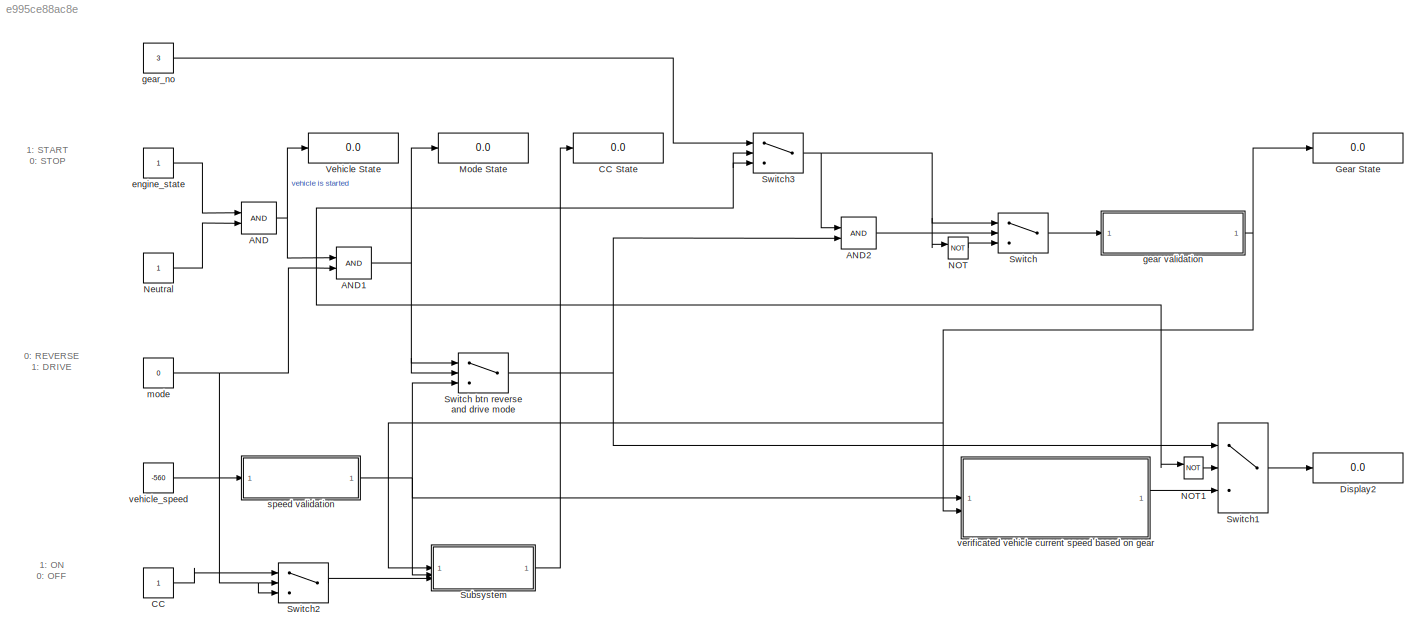
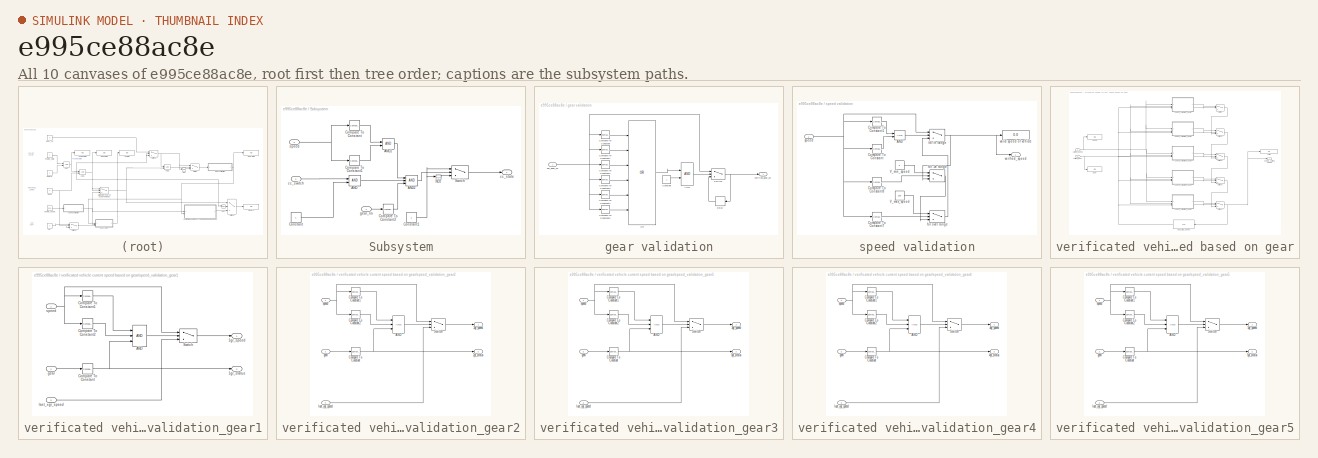
[diagram: thumbnail index - all 10 canvases of the model, root first then tree order]
MODEL slx_e995ce88ac8e
KIND model
CONFIG AbsTol = auto
CONFIG EnableMultiTasking = off
CONFIG FixedStep = auto
CONFIG MaxStep = auto
CONFIG MinStep = auto
CONFIG RelTol = 1e-3
CONFIG SampleTimeConstraint = Unconstrained
CONFIG SolverName = VariableStepAuto
CONFIG StartTime = 0.0
CONFIG StopTime = inf
BLOCK [Logic] AND
  AllPortsSameDT = off
  IconShape = distinctive
  OutDataTypeStr = boolean
BLOCK [Logic] AND1
  AllPortsSameDT = off
  IconShape = distinctive
  OutDataTypeStr = boolean
BLOCK [Logic] AND2
  AllPortsSameDT = off
  IconShape = distinctive
  OutDataTypeStr = boolean
BLOCK [Constant] CC
BLOCK [Display] CC State
  Decimation = 1
BLOCK [Display] Display2
  Decimation = 1
BLOCK [Display] Gear State
  Decimation = 1
BLOCK [Display] Mode State
  Decimation = 1
BLOCK [Logic] NOT
  AllPortsSameDT = off
  IconShape = distinctive
  Operator = NOT
  OutDataTypeStr = boolean
BLOCK [Logic] NOT1
  AllPortsSameDT = off
  IconShape = distinctive
  Operator = NOT
  OutDataTypeStr = boolean
BLOCK [Constant] Neutral
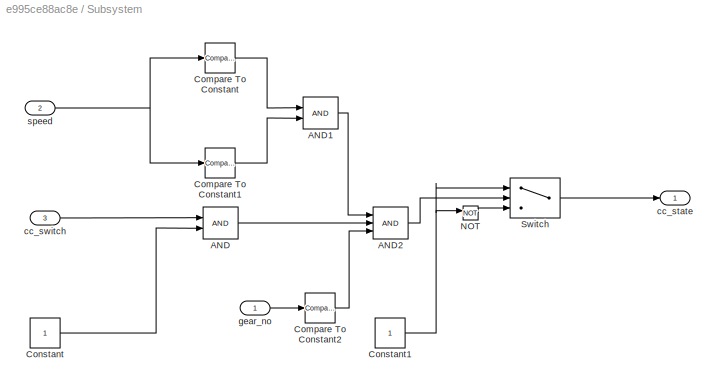
BLOCK [SubSystem] Subsystem
BLOCK [Logic] Subsystem/AND
  AllPortsSameDT = off
  IconShape = distinctive
  OutDataTypeStr = boolean
BLOCK [Logic] Subsystem/AND1
  AllPortsSameDT = off
  IconShape = distinctive
  OutDataTypeStr = boolean
BLOCK [Logic] Subsystem/AND2
  AllPortsSameDT = off
  IconShape = distinctive
  Inputs = 3
  OutDataTypeStr = boolean
BLOCK [Reference] Subsystem/Compare To Constant  REF=simulink/Logic and Bit
Operations/Compare
To Constant
  SourceBlock = simulink/Logic and Bit\nOperations/Compare\nTo Constant
  SourceType = Compare To Constant
BLOCK [Reference] Subsystem/Compare To Constant1  REF=simulink/Logic and Bit
Operations/Compare
To Constant
  SourceBlock = simulink/Logic and Bit\nOperations/Compare\nTo Constant
  SourceType = Compare To Constant
BLOCK [Reference] Subsystem/Compare To Constant2  REF=simulink/Logic and Bit
Operations/Compare
To Constant
  SourceBlock = simulink/Logic and Bit\nOperations/Compare\nTo Constant
  SourceType = Compare To Constant
BLOCK [Constant] Subsystem/Constant
BLOCK [Constant] Subsystem/Constant1
BLOCK [Logic] Subsystem/NOT
  AllPortsSameDT = off
  IconShape = distinctive
  Operator = NOT
  OutDataTypeStr = boolean
BLOCK [Switch] Subsystem/Switch
  Criteria = u2 > Threshold
  InputSameDT = off
  SaturateOnIntegerOverflow = off
BLOCK [Outport] Subsystem/cc_state
BLOCK [Inport] Subsystem/cc_switch
  Port = 3
BLOCK [Inport] Subsystem/gear_no
BLOCK [Inport] Subsystem/speed
  Port = 2
BLOCK [Switch] Switch
  Criteria = u2 > Threshold
  InputSameDT = off
  SaturateOnIntegerOverflow = off
BLOCK [Switch] Switch btn reverse and drive mode
  Criteria = u2 > Threshold
  InputSameDT = off
  SaturateOnIntegerOverflow = off
BLOCK [Switch] Switch1
  Criteria = u2 > Threshold
  InputSameDT = off
  SaturateOnIntegerOverflow = off
BLOCK [Switch] Switch2
  Criteria = u2 > Threshold
  InputSameDT = off
  SaturateOnIntegerOverflow = off
BLOCK [Switch] Switch3
  Criteria = u2 > Threshold
  InputSameDT = off
  SaturateOnIntegerOverflow = off
BLOCK [Display] Vehicle State
  Decimation = 1
BLOCK [Constant] engine_state
BLOCK [SubSystem] gear validation
BLOCK [Logic] gear validation/AND
  AllPortsSameDT = off
  IconShape = distinctive
  OutDataTypeStr = boolean
BLOCK [Reference] gear validation/Compare To Constant  REF=simulink/Logic and Bit
Operations/Compare
To Constant
  SourceBlock = simulink/Logic and Bit\nOperations/Compare\nTo Constant
  SourceType = Compare To Constant
BLOCK [Reference] gear validation/Compare To Constant1  REF=simulink/Logic and Bit
Operations/Compare
To Constant
  SourceBlock = simulink/Logic and Bit\nOperations/Compare\nTo Constant
  SourceType = Compare To Constant
BLOCK [Reference] gear validation/Compare To Constant2  REF=simulink/Logic and Bit
Operations/Compare
To Constant
  SourceBlock = simulink/Logic and Bit\nOperations/Compare\nTo Constant
  SourceType = Compare To Constant
BLOCK [Reference] gear validation/Compare To Constant3  REF=simulink/Logic and Bit
Operations/Compare
To Constant
  SourceBlock = simulink/Logic and Bit\nOperations/Compare\nTo Constant
  SourceType = Compare To Constant
BLOCK [Reference] gear validation/Compare To Constant4  REF=simulink/Logic and Bit
Operations/Compare
To Constant
  SourceBlock = simulink/Logic and Bit\nOperations/Compare\nTo Constant
  SourceType = Compare To Constant
BLOCK [Reference] gear validation/Compare To Constant5  REF=simulink/Logic and Bit
Operations/Compare
To Constant
  SourceBlock = simulink/Logic and Bit\nOperations/Compare\nTo Constant
  SourceType = Compare To Constant
BLOCK [Constant] gear validation/Constant
BLOCK [Delay] gear validation/Delay
  DelayLength = 1
  InitialCondition = 0
  InputPortMap = u0
BLOCK [Logic] gear validation/OR
  AllPortsSameDT = off
  IconShape = distinctive
  Inputs = 6
  Operator = OR
  OutDataTypeStr = boolean
BLOCK [Switch] gear validation/Switch
  Criteria = u2 > Threshold
  InputSameDT = off
  SaturateOnIntegerOverflow = off
BLOCK [Inport] gear validation/set_gear_no
BLOCK [Outport] gear validation/verified_gear_no
BLOCK [Constant] gear_no
  Value = 3
BLOCK [Constant] mode
  Value = 0
BLOCK [SubSystem] speed validation
BLOCK [Logic] speed validation/AND
  AllPortsSameDT = off
  IconShape = distinctive
  OutDataTypeStr = boolean
BLOCK [Reference] speed validation/Compare To Constant  REF=simulink/Logic and Bit
Operations/Compare
To Constant
  SourceBlock = simulink/Logic and Bit\nOperations/Compare\nTo Constant
  SourceType = Compare To Constant
BLOCK [Reference] speed validation/Compare To Constant1  REF=simulink/Logic and Bit
Operations/Compare
To Constant
  SourceBlock = simulink/Logic and Bit\nOperations/Compare\nTo Constant
  SourceType = Compare To Constant
BLOCK [Reference] speed validation/Compare To Constant7  REF=simulink/Logic and Bit
Operations/Compare
To Constant
  SourceBlock = simulink/Logic and Bit\nOperations/Compare\nTo Constant
  SourceType = Compare To Constant
BLOCK [Reference] speed validation/Compare To Constant8  REF=simulink/Logic and Bit
Operations/Compare
To Constant
  SourceBlock = simulink/Logic and Bit\nOperations/Compare\nTo Constant
  SourceType = Compare To Constant
BLOCK [Constant] speed validation/V_max_speed
  Value = 100
BLOCK [Constant] speed validation/V_min_speed
  Value = 0
BLOCK [Switch] speed validation/for -ve range
  Criteria = u2 > Threshold
  InputSameDT = off
  SaturateOnIntegerOverflow = off
BLOCK [Switch] speed validation/for in range
  Criteria = u2 > Threshold
  InputSameDT = off
  SaturateOnIntegerOverflow = off
BLOCK [Switch] speed validation/for over range
  Criteria = u2 > Threshold
  InputSameDT = off
  SaturateOnIntegerOverflow = off
BLOCK [Inport] speed validation/speed
  IconDisplay = Signal name
BLOCK [Display] speed validation/valid speed of vehicle
  Decimation = 1
BLOCK [Outport] speed validation/verified_speed
  IconDisplay = Signal name
BLOCK [Constant] vehicle_speed
  Value = -560
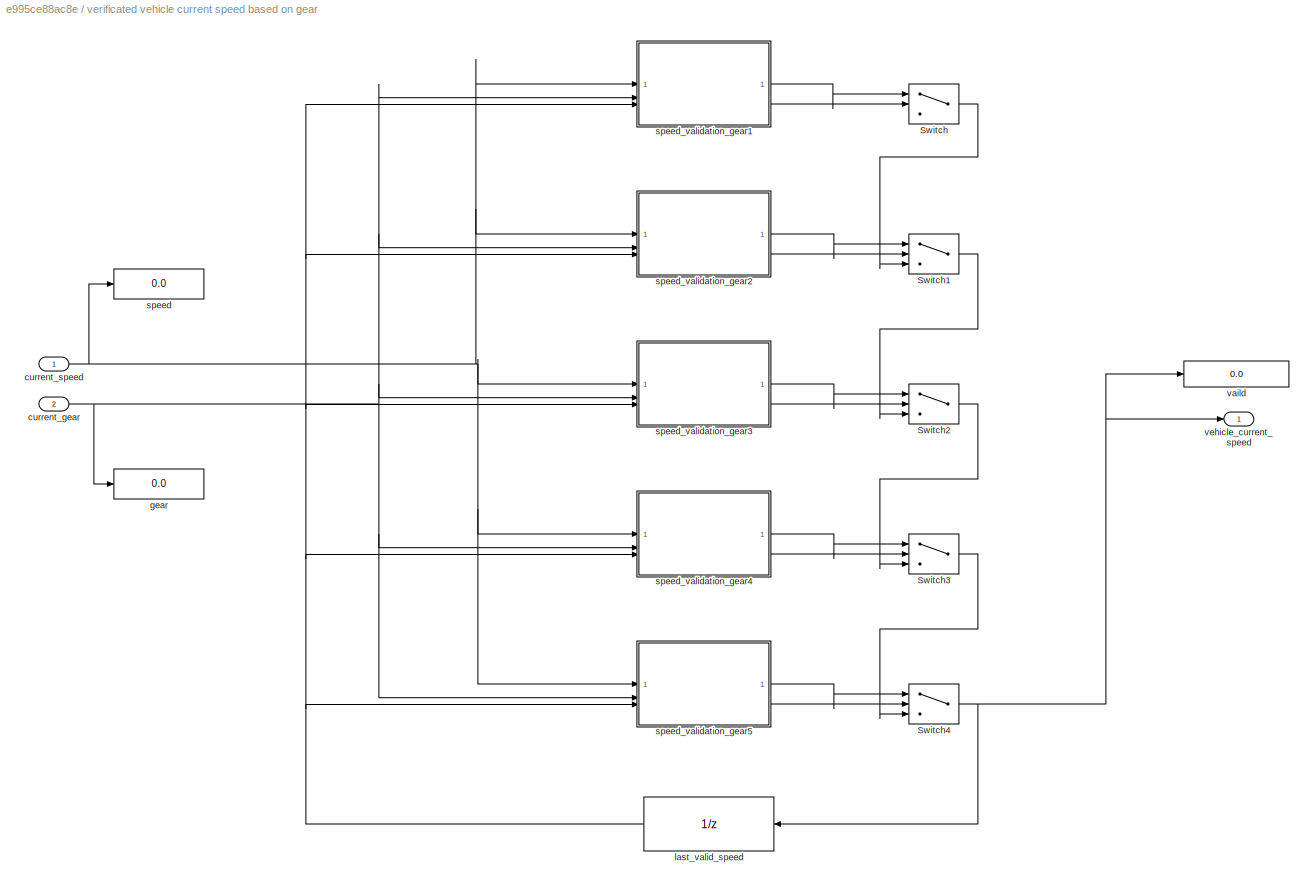
BLOCK [SubSystem] verificated vehicle current speed based on gear
BLOCK [Switch] verificated vehicle current speed based on gear/Switch
  Criteria = u2 > Threshold
  InputSameDT = off
  SaturateOnIntegerOverflow = off
BLOCK [Switch] verificated vehicle current speed based on gear/Switch1
  Criteria = u2 > Threshold
  InputSameDT = off
  SaturateOnIntegerOverflow = off
BLOCK [Switch] verificated vehicle current speed based on gear/Switch2
  Criteria = u2 > Threshold
  InputSameDT = off
  SaturateOnIntegerOverflow = off
BLOCK [Switch] verificated vehicle current speed based on gear/Switch3
  Criteria = u2 > Threshold
  InputSameDT = off
  SaturateOnIntegerOverflow = off
BLOCK [Switch] verificated vehicle current speed based on gear/Switch4
  Criteria = u2 > Threshold
  InputSameDT = off
  SaturateOnIntegerOverflow = off
BLOCK [Inport] verificated vehicle current speed based on gear/current_gear
  Port = 2
BLOCK [Inport] verificated vehicle current speed based on gear/current_speed
BLOCK [Display] verificated vehicle current speed based on gear/gear
  Decimation = 1
BLOCK [UnitDelay] verificated vehicle current speed based on gear/last_valid_speed
  HasFrameUpgradeWarning = on
  SampleTime = -1
BLOCK [Display] verificated vehicle current speed based on gear/speed
  Decimation = 1
BLOCK [SubSystem] verificated vehicle current speed based on gear/speed_validation_gear1
BLOCK [Outport] verificated vehicle current speed based on gear/speed_validation_gear1/1gr_speed
BLOCK [Outport] verificated vehicle current speed based on gear/speed_validation_gear1/1gr_status
  Port = 2
BLOCK [Logic] verificated vehicle current speed based on gear/speed_validation_gear1/AND
  AllPortsSameDT = off
  IconShape = distinctive
  Inputs = 3
  OutDataTypeStr = boolean
BLOCK [Reference] verificated vehicle current speed based on gear/speed_validation_gear1/Compare To Constant  REF=simulink/Logic and Bit
Operations/Compare
To Constant
  SourceBlock = simulink/Logic and Bit\nOperations/Compare\nTo Constant
  SourceType = Compare To Constant
BLOCK [Reference] verificated vehicle current speed based on gear/speed_validation_gear1/Compare To Constant1  REF=simulink/Logic and Bit
Operations/Compare
To Constant
  SourceBlock = simulink/Logic and Bit\nOperations/Compare\nTo Constant
  SourceType = Compare To Constant
BLOCK [Reference] verificated vehicle current speed based on gear/speed_validation_gear1/Compare To Constant2  REF=simulink/Logic and Bit
Operations/Compare
To Constant
  SourceBlock = simulink/Logic and Bit\nOperations/Compare\nTo Constant
  SourceType = Compare To Constant
BLOCK [Switch] verificated vehicle current speed based on gear/speed_validation_gear1/Switch
  Criteria = u2 > Threshold
  InputSameDT = off
  SaturateOnIntegerOverflow = off
BLOCK [Inport] verificated vehicle current speed based on gear/speed_validation_gear1/gear
  Port = 2
BLOCK [Inport] verificated vehicle current speed based on gear/speed_validation_gear1/last_xgr_speed
  Port = 3
BLOCK [Inport] verificated vehicle current speed based on gear/speed_validation_gear1/speed
BLOCK [SubSystem] verificated vehicle current speed based on gear/speed_validation_gear2
BLOCK [Outport] verificated vehicle current speed based on gear/speed_validation_gear2/2gr_speed
BLOCK [Outport] verificated vehicle current speed based on gear/speed_validation_gear2/2gr_status
  Port = 2
BLOCK [Logic] verificated vehicle current speed based on gear/speed_validation_gear2/AND
  AllPortsSameDT = off
  IconShape = distinctive
  Inputs = 3
  OutDataTypeStr = boolean
BLOCK [Reference] verificated vehicle current speed based on gear/speed_validation_gear2/Compare To Constant  REF=simulink/Logic and Bit
Operations/Compare
To Constant
  SourceBlock = simulink/Logic and Bit\nOperations/Compare\nTo Constant
  SourceType = Compare To Constant
BLOCK [Reference] verificated vehicle current speed based on gear/speed_validation_gear2/Compare To Constant1  REF=simulink/Logic and Bit
Operations/Compare
To Constant
  SourceBlock = simulink/Logic and Bit\nOperations/Compare\nTo Constant
  SourceType = Compare To Constant
BLOCK [Reference] verificated vehicle current speed based on gear/speed_validation_gear2/Compare To Constant2  REF=simulink/Logic and Bit
Operations/Compare
To Constant
  SourceBlock = simulink/Logic and Bit\nOperations/Compare\nTo Constant
  SourceType = Compare To Constant
BLOCK [Switch] verificated vehicle current speed based on gear/speed_validation_gear2/Switch
  Criteria = u2 > Threshold
  InputSameDT = off
  SaturateOnIntegerOverflow = off
BLOCK [Inport] verificated vehicle current speed based on gear/speed_validation_gear2/gear
  Port = 2
BLOCK [Inport] verificated vehicle current speed based on gear/speed_validation_gear2/last_xgr_speed
  Port = 3
BLOCK [Inport] verificated vehicle current speed based on gear/speed_validation_gear2/speed
BLOCK [SubSystem] verificated vehicle current speed based on gear/speed_validation_gear3
BLOCK [Outport] verificated vehicle current speed based on gear/speed_validation_gear3/3gr_speed
BLOCK [Outport] verificated vehicle current speed based on gear/speed_validation_gear3/3gr_status
  Port = 2
BLOCK [Logic] verificated vehicle current speed based on gear/speed_validation_gear3/AND
  AllPortsSameDT = off
  IconShape = distinctive
  Inputs = 3
  OutDataTypeStr = boolean
BLOCK [Reference] verificated vehicle current speed based on gear/speed_validation_gear3/Compare To Constant  REF=simulink/Logic and Bit
Operations/Compare
To Constant
  SourceBlock = simulink/Logic and Bit\nOperations/Compare\nTo Constant
  SourceType = Compare To Constant
BLOCK [Reference] verificated vehicle current speed based on gear/speed_validation_gear3/Compare To Constant1  REF=simulink/Logic and Bit
Operations/Compare
To Constant
  SourceBlock = simulink/Logic and Bit\nOperations/Compare\nTo Constant
  SourceType = Compare To Constant
BLOCK [Reference] verificated vehicle current speed based on gear/speed_validation_gear3/Compare To Constant2  REF=simulink/Logic and Bit
Operations/Compare
To Constant
  SourceBlock = simulink/Logic and Bit\nOperations/Compare\nTo Constant
  SourceType = Compare To Constant
BLOCK [Switch] verificated vehicle current speed based on gear/speed_validation_gear3/Switch
  Criteria = u2 > Threshold
  InputSameDT = off
  SaturateOnIntegerOverflow = off
BLOCK [Inport] verificated vehicle current speed based on gear/speed_validation_gear3/gear
  Port = 2
BLOCK [Inport] verificated vehicle current speed based on gear/speed_validation_gear3/last_xgr_speed
  Port = 3
BLOCK [Inport] verificated vehicle current speed based on gear/speed_validation_gear3/speed
BLOCK [SubSystem] verificated vehicle current speed based on gear/speed_validation_gear4
BLOCK [Outport] verificated vehicle current speed based on gear/speed_validation_gear4/4gr_speed
BLOCK [Outport] verificated vehicle current speed based on gear/speed_validation_gear4/4gr_status
  Port = 2
BLOCK [Logic] verificated vehicle current speed based on gear/speed_validation_gear4/AND
  AllPortsSameDT = off
  IconShape = distinctive
  Inputs = 3
  OutDataTypeStr = boolean
BLOCK [Reference] verificated vehicle current speed based on gear/speed_validation_gear4/Compare To Constant  REF=simulink/Logic and Bit
Operations/Compare
To Constant
  SourceBlock = simulink/Logic and Bit\nOperations/Compare\nTo Constant
  SourceType = Compare To Constant
BLOCK [Reference] verificated vehicle current speed based on gear/speed_validation_gear4/Compare To Constant1  REF=simulink/Logic and Bit
Operations/Compare
To Constant
  SourceBlock = simulink/Logic and Bit\nOperations/Compare\nTo Constant
  SourceType = Compare To Constant
BLOCK [Reference] verificated vehicle current speed based on gear/speed_validation_gear4/Compare To Constant2  REF=simulink/Logic and Bit
Operations/Compare
To Constant
  SourceBlock = simulink/Logic and Bit\nOperations/Compare\nTo Constant
  SourceType = Compare To Constant
BLOCK [Switch] verificated vehicle current speed based on gear/speed_validation_gear4/Switch
  Criteria = u2 > Threshold
  InputSameDT = off
  SaturateOnIntegerOverflow = off
BLOCK [Inport] verificated vehicle current speed based on gear/speed_validation_gear4/gear
  Port = 2
BLOCK [Inport] verificated vehicle current speed based on gear/speed_validation_gear4/last_xgr_speed
  Port = 3
BLOCK [Inport] verificated vehicle current speed based on gear/speed_validation_gear4/speed
BLOCK [SubSystem] verificated vehicle current speed based on gear/speed_validation_gear5
BLOCK [Outport] verificated vehicle current speed based on gear/speed_validation_gear5/5gr_speed
BLOCK [Outport] verificated vehicle current speed based on gear/speed_validation_gear5/5gr_status
  Port = 2
BLOCK [Logic] verificated vehicle current speed based on gear/speed_validation_gear5/AND
  AllPortsSameDT = off
  IconShape = distinctive
  Inputs = 3
  OutDataTypeStr = boolean
BLOCK [Reference] verificated vehicle current speed based on gear/speed_validation_gear5/Compare To Constant  REF=simulink/Logic and Bit
Operations/Compare
To Constant
  SourceBlock = simulink/Logic and Bit\nOperations/Compare\nTo Constant
  SourceType = Compare To Constant
BLOCK [Reference] verificated vehicle current speed based on gear/speed_validation_gear5/Compare To Constant1  REF=simulink/Logic and Bit
Operations/Compare
To Constant
  SourceBlock = simulink/Logic and Bit\nOperations/Compare\nTo Constant
  SourceType = Compare To Constant
BLOCK [Reference] verificated vehicle current speed based on gear/speed_validation_gear5/Compare To Constant2  REF=simulink/Logic and Bit
Operations/Compare
To Constant
  SourceBlock = simulink/Logic and Bit\nOperations/Compare\nTo Constant
  SourceType = Compare To Constant
BLOCK [Switch] verificated vehicle current speed based on gear/speed_validation_gear5/Switch
  Criteria = u2 > Threshold
  InputSameDT = off
  SaturateOnIntegerOverflow = off
BLOCK [Inport] verificated vehicle current speed based on gear/speed_validation_gear5/gear
  Port = 2
BLOCK [Inport] verificated vehicle current speed based on gear/speed_validation_gear5/last_xgr_speed
  Port = 3
BLOCK [Inport] verificated vehicle current speed based on gear/speed_validation_gear5/speed
BLOCK [Display] verificated vehicle current speed based on gear/vaild
  Decimation = 1
BLOCK [Outport] verificated vehicle current speed based on gear/vehicle_current_speed
ANNOTATION (root): 0: REVERSE 1: DRIVE
ANNOTATION (root): 1: ON 0: OFF
ANNOTATION (root): 1: START 0: STOP
NET AND1:1 -> Mode State:1, Switch btn reverse and drive mode:1, Switch btn reverse and drive mode:2
LINE AND2:1 -> Switch:2
NET AND:1 -> AND1:1, Vehicle State:1
LINE CC:1 -> Switch2:1
LINE NOT1:1 -> Switch1:2
LINE NOT:1 -> Switch:3
LINE Neutral:1 -> AND:2
LINE Subsystem/AND1:1 -> Subsystem/AND2:1
LINE Subsystem/AND2:1 -> Subsystem/Switch:2
LINE Subsystem/AND:1 -> Subsystem/AND2:2
LINE Subsystem/Compare To Constant1:1 -> Subsystem/AND1:2
LINE Subsystem/Compare To Constant2:1 -> Subsystem/AND2:3
LINE Subsystem/Compare To Constant:1 -> Subsystem/AND1:1
NET Subsystem/Constant1:1 -> Subsystem/NOT:1, Subsystem/Switch:1
LINE Subsystem/Constant:1 -> Subsystem/AND:2
LINE Subsystem/NOT:1 -> Subsystem/Switch:3
LINE Subsystem/Switch:1 -> Subsystem/cc_state:1
LINE Subsystem/cc_switch:1 -> Subsystem/AND:1
LINE Subsystem/gear_no:1 -> Subsystem/Compare To Constant2:1
NET Subsystem/speed:1 -> Subsystem/Compare To Constant1:1, Subsystem/Compare To Constant:1
LINE Subsystem:1 -> CC State:1
NET Switch btn reverse and drive mode:1 -> AND2:2, Switch1:1
LINE Switch1:1 -> Display2:1
LINE Switch2:1 -> Subsystem:3
NET Switch3:1 -> AND2:1, NOT:1, Switch:1
LINE Switch:1 -> gear validation:1
LINE engine_state:1 -> AND:1
LINE gear validation/AND:1 -> gear validation/Switch:2
LINE gear validation/Compare To Constant1:1 -> gear validation/OR:2
LINE gear validation/Compare To Constant2:1 -> gear validation/OR:3
LINE gear validation/Compare To Constant3:1 -> gear validation/OR:4
LINE gear validation/Compare To Constant4:1 -> gear validation/OR:5
LINE gear validation/Compare To Constant5:1 -> gear validation/OR:6
LINE gear validation/Compare To Constant:1 -> gear validation/OR:1
LINE gear validation/Constant:1 -> gear validation/AND:2
LINE gear validation/Delay:1 -> gear validation/Switch:3
LINE gear validation/OR:1 -> gear validation/AND:1
NET gear validation/Switch:1 -> gear validation/Delay:1, gear validation/verified_gear_no:1
NET gear validation/set_gear_no:1 -> gear validation/Compare To Constant1:1, gear validation/Compare To Constant2:1, gear validation/Compare To Constant3:1, gear validation/Compare To Constant4:1, gear validation/Compare To Constant5:1, gear validation/Compare To Constant:1, gear validation/Switch:1
NET gear validation:1 -> Gear State:1, Subsystem:1, verificated vehicle current speed based on gear:2
LINE gear_no:1 -> Switch3:1
NET mode:1 -> AND1:2, NOT1:1, Switch2:2, Switch2:3, Switch3:2, Switch3:3
LINE speed validation/AND:1 -> speed validation/for in range:2
LINE speed validation/Compare To Constant1:1 -> speed validation/AND:1
LINE speed validation/Compare To Constant7:1 -> speed validation/for over range:2
LINE speed validation/Compare To Constant8:1 -> speed validation/for -ve range:2
LINE speed validation/Compare To Constant:1 -> speed validation/AND:2
LINE speed validation/V_max_speed:1 -> speed validation/for over range:1
LINE speed validation/V_min_speed:1 -> speed validation/for -ve range:1
LINE speed validation/for -ve range:1 -> speed validation/for over range:3
NET speed validation/for in range:1 -> speed validation/for -ve range:3, speed validation/valid speed of vehicle:1, speed validation/verified_speed:1
LINE speed validation/for over range:1 -> speed validation/for in range:3
NET speed validation/speed:1 -> speed validation/Compare To Constant1:1, speed validation/Compare To Constant7:1, speed validation/Compare To Constant8:1, speed validation/Compare To Constant:1, speed validation/for in range:1
NET speed validation:1 -> Subsystem:2, Switch btn reverse and drive mode:3, verificated vehicle current speed based on gear:1
LINE vehicle_speed:1 -> speed validation:1
LINE verificated vehicle current speed based on gear/Switch1:1 -> verificated vehicle current speed based on gear/Switch2:3
LINE verificated vehicle current speed based on gear/Switch2:1 -> verificated vehicle current speed based on gear/Switch3:3
LINE verificated vehicle current speed based on gear/Switch3:1 -> verificated vehicle current speed based on gear/Switch4:3
NET verificated vehicle current speed based on gear/Switch4:1 -> verificated vehicle current speed based on gear/last_valid_speed:1, verificated vehicle current speed based on gear/vaild:1, verificated vehicle current speed based on gear/vehicle_current_speed:1
LINE verificated vehicle current speed based on gear/Switch:1 -> verificated vehicle current speed based on gear/Switch1:3
NET verificated vehicle current speed based on gear/current_gear:1 -> verificated vehicle current speed based on gear/gear:1, verificated vehicle current speed based on gear/speed_validation_gear1:2, verificated vehicle current speed based on gear/speed_validation_gear2:2, verificated vehicle current speed based on gear/speed_validation_gear3:2, verificated vehicle current speed based on gear/speed_validation_gear4:2, verificated vehicle current speed based on gear/speed_validation_gear5:2
NET verificated vehicle current speed based on gear/current_speed:1 -> verificated vehicle current speed based on gear/speed:1, verificated vehicle current speed based on gear/speed_validation_gear1:1, verificated vehicle current speed based on gear/speed_validation_gear2:1, verificated vehicle current speed based on gear/speed_validation_gear3:1, verificated vehicle current speed based on gear/speed_validation_gear4:1, verificated vehicle current speed based on gear/speed_validation_gear5:1
NET verificated vehicle current speed based on gear/last_valid_speed:1 -> verificated vehicle current speed based on gear/speed_validation_gear1:3, verificated vehicle current speed based on gear/speed_validation_gear2:3, verificated vehicle current speed based on gear/speed_validation_gear3:3, verificated vehicle current speed based on gear/speed_validation_gear4:3, verificated vehicle current speed based on gear/speed_validation_gear5:3
LINE verificated vehicle current speed based on gear/speed_validation_gear1/AND:1 -> verificated vehicle current speed based on gear/speed_validation_gear1/Switch:2
LINE verificated vehicle current speed based on gear/speed_validation_gear1/Compare To Constant1:1 -> verificated vehicle current speed based on gear/speed_validation_gear1/AND:1
LINE verificated vehicle current speed based on gear/speed_validation_gear1/Compare To Constant2:1 -> verificated vehicle current speed based on gear/speed_validation_gear1/AND:2
NET verificated vehicle current speed based on gear/speed_validation_gear1/Compare To Constant:1 -> verificated vehicle current speed based on gear/speed_validation_gear1/1gr_status:1, verificated vehicle current speed based on gear/speed_validation_gear1/AND:3
LINE verificated vehicle current speed based on gear/speed_validation_gear1/Switch:1 -> verificated vehicle current speed based on gear/speed_validation_gear1/1gr_speed:1
LINE verificated vehicle current speed based on gear/speed_validation_gear1/gear:1 -> verificated vehicle current speed based on gear/speed_validation_gear1/Compare To Constant:1
LINE verificated vehicle current speed based on gear/speed_validation_gear1/last_xgr_speed:1 -> verificated vehicle current speed based on gear/speed_validation_gear1/Switch:3
NET verificated vehicle current speed based on gear/speed_validation_gear1/speed:1 -> verificated vehicle current speed based on gear/speed_validation_gear1/Compare To Constant1:1, verificated vehicle current speed based on gear/speed_validation_gear1/Compare To Constant2:1, verificated vehicle current speed based on gear/speed_validation_gear1/Switch:1
LINE verificated vehicle current speed based on gear/speed_validation_gear1:1 -> verificated vehicle current speed based on gear/Switch:1
LINE verificated vehicle current speed based on gear/speed_validation_gear1:2 -> verificated vehicle current speed based on gear/Switch:2
LINE verificated vehicle current speed based on gear/speed_validation_gear2/AND:1 -> verificated vehicle current speed based on gear/speed_validation_gear2/Switch:2
LINE verificated vehicle current speed based on gear/speed_validation_gear2/Compare To Constant1:1 -> verificated vehicle current speed based on gear/speed_validation_gear2/AND:1
LINE verificated vehicle current speed based on gear/speed_validation_gear2/Compare To Constant2:1 -> verificated vehicle current speed based on gear/speed_validation_gear2/AND:2
NET verificated vehicle current speed based on gear/speed_validation_gear2/Compare To Constant:1 -> verificated vehicle current speed based on gear/speed_validation_gear2/2gr_status:1, verificated vehicle current speed based on gear/speed_validation_gear2/AND:3
LINE verificated vehicle current speed based on gear/speed_validation_gear2/Switch:1 -> verificated vehicle current speed based on gear/speed_validation_gear2/2gr_speed:1
LINE verificated vehicle current speed based on gear/speed_validation_gear2/gear:1 -> verificated vehicle current speed based on gear/speed_validation_gear2/Compare To Constant:1
LINE verificated vehicle current speed based on gear/speed_validation_gear2/last_xgr_speed:1 -> verificated vehicle current speed based on gear/speed_validation_gear2/Switch:3
NET verificated vehicle current speed based on gear/speed_validation_gear2/speed:1 -> verificated vehicle current speed based on gear/speed_validation_gear2/Compare To Constant1:1, verificated vehicle current speed based on gear/speed_validation_gear2/Compare To Constant2:1, verificated vehicle current speed based on gear/speed_validation_gear2/Switch:1
LINE verificated vehicle current speed based on gear/speed_validation_gear2:1 -> verificated vehicle current speed based on gear/Switch1:1
LINE verificated vehicle current speed based on gear/speed_validation_gear2:2 -> verificated vehicle current speed based on gear/Switch1:2
LINE verificated vehicle current speed based on gear/speed_validation_gear3/AND:1 -> verificated vehicle current speed based on gear/speed_validation_gear3/Switch:2
LINE verificated vehicle current speed based on gear/speed_validation_gear3/Compare To Constant1:1 -> verificated vehicle current speed based on gear/speed_validation_gear3/AND:1
LINE verificated vehicle current speed based on gear/speed_validation_gear3/Compare To Constant2:1 -> verificated vehicle current speed based on gear/speed_validation_gear3/AND:2
NET verificated vehicle current speed based on gear/speed_validation_gear3/Compare To Constant:1 -> verificated vehicle current speed based on gear/speed_validation_gear3/3gr_status:1, verificated vehicle current speed based on gear/speed_validation_gear3/AND:3
LINE verificated vehicle current speed based on gear/speed_validation_gear3/Switch:1 -> verificated vehicle current speed based on gear/speed_validation_gear3/3gr_speed:1
LINE verificated vehicle current speed based on gear/speed_validation_gear3/gear:1 -> verificated vehicle current speed based on gear/speed_validation_gear3/Compare To Constant:1
LINE verificated vehicle current speed based on gear/speed_validation_gear3/last_xgr_speed:1 -> verificated vehicle current speed based on gear/speed_validation_gear3/Switch:3
NET verificated vehicle current speed based on gear/speed_validation_gear3/speed:1 -> verificated vehicle current speed based on gear/speed_validation_gear3/Compare To Constant1:1, verificated vehicle current speed based on gear/speed_validation_gear3/Compare To Constant2:1, verificated vehicle current speed based on gear/speed_validation_gear3/Switch:1
LINE verificated vehicle current speed based on gear/speed_validation_gear3:1 -> verificated vehicle current speed based on gear/Switch2:1
LINE verificated vehicle current speed based on gear/speed_validation_gear3:2 -> verificated vehicle current speed based on gear/Switch2:2
LINE verificated vehicle current speed based on gear/speed_validation_gear4/AND:1 -> verificated vehicle current speed based on gear/speed_validation_gear4/Switch:2
LINE verificated vehicle current speed based on gear/speed_validation_gear4/Compare To Constant1:1 -> verificated vehicle current speed based on gear/speed_validation_gear4/AND:1
LINE verificated vehicle current speed based on gear/speed_validation_gear4/Compare To Constant2:1 -> verificated vehicle current speed based on gear/speed_validation_gear4/AND:2
NET verificated vehicle current speed based on gear/speed_validation_gear4/Compare To Constant:1 -> verificated vehicle current speed based on gear/speed_validation_gear4/4gr_status:1, verificated vehicle current speed based on gear/speed_validation_gear4/AND:3
LINE verificated vehicle current speed based on gear/speed_validation_gear4/Switch:1 -> verificated vehicle current speed based on gear/speed_validation_gear4/4gr_speed:1
LINE verificated vehicle current speed based on gear/speed_validation_gear4/gear:1 -> verificated vehicle current speed based on gear/speed_validation_gear4/Compare To Constant:1
LINE verificated vehicle current speed based on gear/speed_validation_gear4/last_xgr_speed:1 -> verificated vehicle current speed based on gear/speed_validation_gear4/Switch:3
NET verificated vehicle current speed based on gear/speed_validation_gear4/speed:1 -> verificated vehicle current speed based on gear/speed_validation_gear4/Compare To Constant1:1, verificated vehicle current speed based on gear/speed_validation_gear4/Compare To Constant2:1, verificated vehicle current speed based on gear/speed_validation_gear4/Switch:1
LINE verificated vehicle current speed based on gear/speed_validation_gear4:1 -> verificated vehicle current speed based on gear/Switch3:1
LINE verificated vehicle current speed based on gear/speed_validation_gear4:2 -> verificated vehicle current speed based on gear/Switch3:2
LINE verificated vehicle current speed based on gear/speed_validation_gear5/AND:1 -> verificated vehicle current speed based on gear/speed_validation_gear5/Switch:2
LINE verificated vehicle current speed based on gear/speed_validation_gear5/Compare To Constant1:1 -> verificated vehicle current speed based on gear/speed_validation_gear5/AND:1
LINE verificated vehicle current speed based on gear/speed_validation_gear5/Compare To Constant2:1 -> verificated vehicle current speed based on gear/speed_validation_gear5/AND:2
NET verificated vehicle current speed based on gear/speed_validation_gear5/Compare To Constant:1 -> verificated vehicle current speed based on gear/speed_validation_gear5/5gr_status:1, verificated vehicle current speed based on gear/speed_validation_gear5/AND:3
LINE verificated vehicle current speed based on gear/speed_validation_gear5/Switch:1 -> verificated vehicle current speed based on gear/speed_validation_gear5/5gr_speed:1
LINE verificated vehicle current speed based on gear/speed_validation_gear5/gear:1 -> verificated vehicle current speed based on gear/speed_validation_gear5/Compare To Constant:1
LINE verificated vehicle current speed based on gear/speed_validation_gear5/last_xgr_speed:1 -> verificated vehicle current speed based on gear/speed_validation_gear5/Switch:3
NET verificated vehicle current speed based on gear/speed_validation_gear5/speed:1 -> verificated vehicle current speed based on gear/speed_validation_gear5/Compare To Constant1:1, verificated vehicle current speed based on gear/speed_validation_gear5/Compare To Constant2:1, verificated vehicle current speed based on gear/speed_validation_gear5/Switch:1
LINE verificated vehicle current speed based on gear/speed_validation_gear5:1 -> verificated vehicle current speed based on gear/Switch4:1
LINE verificated vehicle current speed based on gear/speed_validation_gear5:2 -> verificated vehicle current speed based on gear/Switch4:2
LINE verificated vehicle current speed based on gear:1 -> Switch1:3
note: NET lines group one-source signal fan-out (src -> all destinations, sorted); 1:1 wires keep LINE
